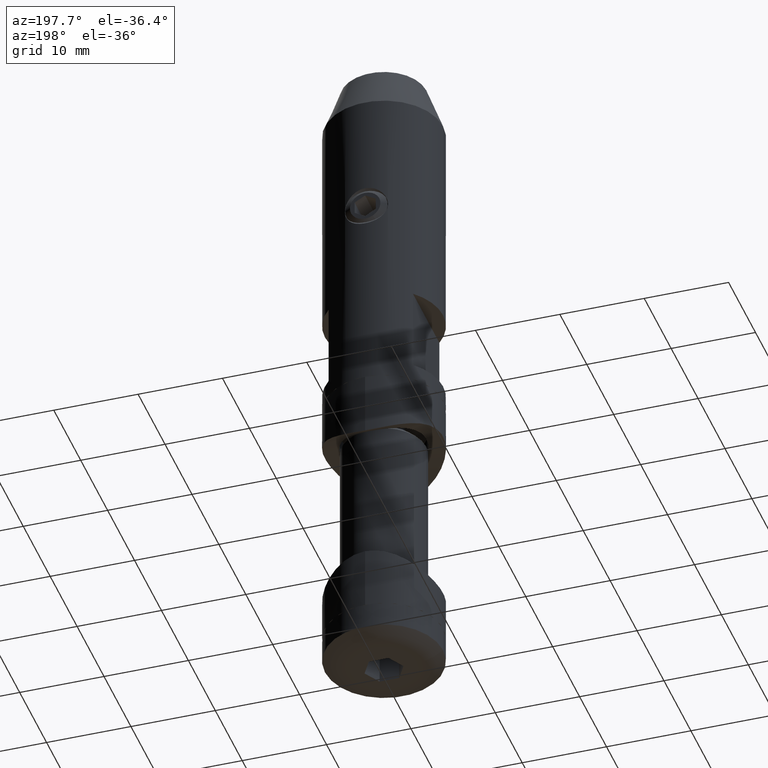
[diagram: clean part render]
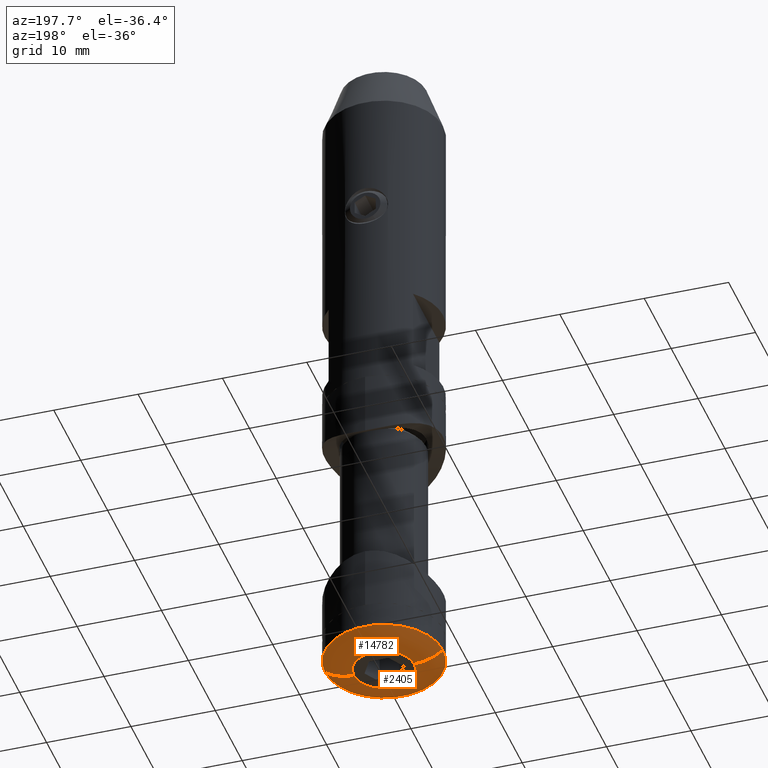
[diagram: same view with one multi-face feature highlighted, each face labeled with its STEP entity id]
A machine part, auxiliary view. The highlighted faces form ONE feature: a constant-radius fillet chain: 2 tangent blend faces with common blend radius 5.5 mm. The faces share edges in the B-rep.
Their STEP definitions:
[1] entity #14782 (Torus):
#89 = VERTEX_POINT ( 'NONE', #6895 ) ;
#938 = CARTESIAN_POINT ( 'NONE',  ( 6.999999999999995559, 0.000000000000000000, -16.50000000000000000 ) ) ;
#1593 = VERTEX_POINT ( 'NONE', #15648 ) ;
#2342 = ORIENTED_EDGE ( 'NONE', *, *, #17030, .F. ) ;
#3318 = AXIS2_PLACEMENT_3D ( 'NONE', #11018, #7861, #17017 ) ;
#3395 = DIRECTION ( 'NONE',  ( -0.000000000000000000, -0.000000000000000000, 1.000000000000000000 ) ) ;
#3495 = DIRECTION ( 'NONE',  ( 0.000000000000000000, -1.000000000000000000, 0.000000000000000000 ) ) ;
#5632 = EDGE_LOOP ( 'NONE', ( #18933, #9639, #2342, #10159 ) ) ;
#6571 = CARTESIAN_POINT ( 'NONE',  ( 3.570714360103545371, 0.000000000000000000, -17.69999999999999929 ) ) ;
#6895 = CARTESIAN_POINT ( 'NONE',  ( -3.570714360103545371, 6.472695752900883550E-16, -17.69999999999999929 ) ) ;
#7322 = DIRECTION ( 'NONE',  ( -0.000000000000000000, -0.000000000000000000, 1.000000000000000000 ) ) ;
#7861 = DIRECTION ( 'NONE',  ( 1.224646799147353207E-16, 1.000000000000000000, 0.000000000000000000 ) ) ;
#9492 = CIRCLE ( 'NONE', #13223, 5.499999999999998224 ) ;
#9639 = ORIENTED_EDGE ( 'NONE', *, *, #14346, .T. ) ;
#9829 = VERTEX_POINT ( 'NONE', #6571 ) ;
#10159 = ORIENTED_EDGE ( 'NONE', *, *, #11431, .F. ) ;
#11018 = CARTESIAN_POINT ( 'NONE',  ( -3.570714360103546259, 4.372863911770297854E-16, -12.20000000000000284 ) ) ;
#11173 = CARTESIAN_POINT ( 'NONE',  ( 0.000000000000000000, 0.000000000000000000, -16.50000000000000000 ) ) ;
#11431 = EDGE_CURVE ( 'NONE', #9829, #11727, #9492, .T. ) ;
#11727 = VERTEX_POINT ( 'NONE', #938 ) ;
#12479 = CARTESIAN_POINT ( 'NONE',  ( 3.570714360103546259, 0.000000000000000000, -12.20000000000000284 ) ) ;
#12922 = AXIS2_PLACEMENT_3D ( 'NONE', #11173, #3395, #14326 ) ;
#13090 = FACE_OUTER_BOUND ( 'NONE', #5632, .T. ) ;
#13106 = AXIS2_PLACEMENT_3D ( 'NONE', #13848, #16889, #15382 ) ;
#13223 = AXIS2_PLACEMENT_3D ( 'NONE', #12479, #3495, #14134 ) ;
#13572 = EDGE_CURVE ( 'NONE', #9829, #89, #13803, .T. ) ;
#13599 = CIRCLE ( 'NONE', #12922, 7.000000000000000000 ) ;
#13803 = CIRCLE ( 'NONE', #13106, 3.570714360103545371 ) ;
#13848 = CARTESIAN_POINT ( 'NONE',  ( 0.000000000000000000, 0.000000000000000000, -17.69999999999999929 ) ) ;
#14134 = DIRECTION ( 'NONE',  ( 0.000000000000000000, 0.000000000000000000, -1.000000000000000000 ) ) ;
#14326 = DIRECTION ( 'NONE',  ( 1.000000000000000000, 0.000000000000000000, 0.000000000000000000 ) ) ;
#14346 = EDGE_CURVE ( 'NONE', #89, #1593, #19094, .T. ) ;
#14782 = ADVANCED_FACE ( 'NONE', ( #13090 ), #14973, .T. ) ;
#14973 = TOROIDAL_SURFACE ( 'NONE', #16715, 3.570714360103546259, 5.499999999999996447 ) ;
#15382 = DIRECTION ( 'NONE',  ( 1.000000000000000000, 0.000000000000000000, 0.000000000000000000 ) ) ;
#15648 = CARTESIAN_POINT ( 'NONE',  ( -6.999999999999995559, 8.572527594031468259E-16, -16.50000000000000000 ) ) ;
#16481 = DIRECTION ( 'NONE',  ( 1.000000000000000000, 0.000000000000000000, 0.000000000000000000 ) ) ;
#16715 = AXIS2_PLACEMENT_3D ( 'NONE', #19707, #7322, #16481 ) ;
#16889 = DIRECTION ( 'NONE',  ( -0.000000000000000000, -0.000000000000000000, 1.000000000000000000 ) ) ;
#17017 = DIRECTION ( 'NONE',  ( -1.000000000000000000, 1.224646799147353207E-16, 0.000000000000000000 ) ) ;
#17030 = EDGE_CURVE ( 'NONE', #11727, #1593, #13599, .T. ) ;
#18933 = ORIENTED_EDGE ( 'NONE', *, *, #13572, .T. ) ;
#19094 = CIRCLE ( 'NONE', #3318, 5.499999999999996447 ) ;
#19707 = CARTESIAN_POINT ( 'NONE',  ( 0.000000000000000000, 0.000000000000000000, -12.20000000000000284 ) ) ;
[2] entity #2405 (Torus):
#89 = VERTEX_POINT ( 'NONE', #6895 ) ;
#627 = DIRECTION ( 'NONE',  ( -0.000000000000000000, -0.000000000000000000, 1.000000000000000000 ) ) ;
#938 = CARTESIAN_POINT ( 'NONE',  ( 6.999999999999995559, 0.000000000000000000, -16.50000000000000000 ) ) ;
#1504 = ORIENTED_EDGE ( 'NONE', *, *, #4650, .T. ) ;
#1593 = VERTEX_POINT ( 'NONE', #15648 ) ;
#1738 = DIRECTION ( 'NONE',  ( 1.000000000000000000, 0.000000000000000000, 0.000000000000000000 ) ) ;
#1869 = CARTESIAN_POINT ( 'NONE',  ( 0.000000000000000000, 0.000000000000000000, -17.69999999999999929 ) ) ;
#2405 = ADVANCED_FACE ( 'NONE', ( #15633 ), #15166, .T. ) ;
#3318 = AXIS2_PLACEMENT_3D ( 'NONE', #11018, #7861, #17017 ) ;
#3495 = DIRECTION ( 'NONE',  ( 0.000000000000000000, -1.000000000000000000, 0.000000000000000000 ) ) ;
#4345 = CIRCLE ( 'NONE', #11882, 3.570714360103545371 ) ;
#4650 = EDGE_CURVE ( 'NONE', #89, #9829, #4345, .T. ) ;
#6571 = CARTESIAN_POINT ( 'NONE',  ( 3.570714360103545371, 0.000000000000000000, -17.69999999999999929 ) ) ;
#6895 = CARTESIAN_POINT ( 'NONE',  ( -3.570714360103545371, 6.472695752900883550E-16, -17.69999999999999929 ) ) ;
#7861 = DIRECTION ( 'NONE',  ( 1.224646799147353207E-16, 1.000000000000000000, 0.000000000000000000 ) ) ;
#9320 = DIRECTION ( 'NONE',  ( 1.000000000000000000, 0.000000000000000000, 0.000000000000000000 ) ) ;
#9454 = EDGE_CURVE ( 'NONE', #1593, #11727, #18441, .T. ) ;
#9492 = CIRCLE ( 'NONE', #13223, 5.499999999999998224 ) ;
#9829 = VERTEX_POINT ( 'NONE', #6571 ) ;
#9877 = CARTESIAN_POINT ( 'NONE',  ( 0.000000000000000000, 0.000000000000000000, -12.20000000000000284 ) ) ;
#11018 = CARTESIAN_POINT ( 'NONE',  ( -3.570714360103546259, 4.372863911770297854E-16, -12.20000000000000284 ) ) ;
#11142 = DIRECTION ( 'NONE',  ( 1.000000000000000000, 0.000000000000000000, 0.000000000000000000 ) ) ;
#11431 = EDGE_CURVE ( 'NONE', #9829, #11727, #9492, .T. ) ;
#11617 = EDGE_LOOP ( 'NONE', ( #12086, #1504, #15658, #14883 ) ) ;
#11639 = AXIS2_PLACEMENT_3D ( 'NONE', #15370, #15306, #9320 ) ;
#11727 = VERTEX_POINT ( 'NONE', #938 ) ;
#11882 = AXIS2_PLACEMENT_3D ( 'NONE', #1869, #14228, #1738 ) ;
#12086 = ORIENTED_EDGE ( 'NONE', *, *, #14346, .F. ) ;
#12479 = CARTESIAN_POINT ( 'NONE',  ( 3.570714360103546259, 0.000000000000000000, -12.20000000000000284 ) ) ;
#13223 = AXIS2_PLACEMENT_3D ( 'NONE', #12479, #3495, #14134 ) ;
#13807 = AXIS2_PLACEMENT_3D ( 'NONE', #9877, #627, #11142 ) ;
#14134 = DIRECTION ( 'NONE',  ( 0.000000000000000000, 0.000000000000000000, -1.000000000000000000 ) ) ;
#14228 = DIRECTION ( 'NONE',  ( -0.000000000000000000, -0.000000000000000000, 1.000000000000000000 ) ) ;
#14346 = EDGE_CURVE ( 'NONE', #89, #1593, #19094, .T. ) ;
#14883 = ORIENTED_EDGE ( 'NONE', *, *, #9454, .F. ) ;
#15166 = TOROIDAL_SURFACE ( 'NONE', #13807, 3.570714360103546259, 5.499999999999996447 ) ;
#15306 = DIRECTION ( 'NONE',  ( -0.000000000000000000, -0.000000000000000000, 1.000000000000000000 ) ) ;
#15370 = CARTESIAN_POINT ( 'NONE',  ( 0.000000000000000000, 0.000000000000000000, -16.50000000000000000 ) ) ;
#15633 = FACE_OUTER_BOUND ( 'NONE', #11617, .T. ) ;
#15648 = CARTESIAN_POINT ( 'NONE',  ( -6.999999999999995559, 8.572527594031468259E-16, -16.50000000000000000 ) ) ;
#15658 = ORIENTED_EDGE ( 'NONE', *, *, #11431, .T. ) ;
#17017 = DIRECTION ( 'NONE',  ( -1.000000000000000000, 1.224646799147353207E-16, 0.000000000000000000 ) ) ;
#18441 = CIRCLE ( 'NONE', #11639, 7.000000000000000000 ) ;
#19094 = CIRCLE ( 'NONE', #3318, 5.499999999999996447 ) ;